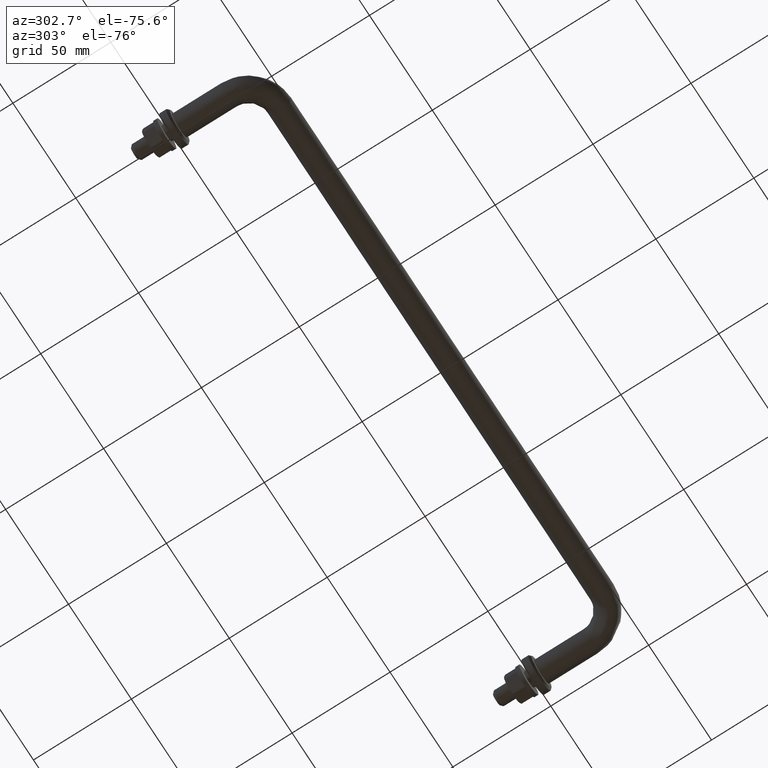
[diagram: clean part render]
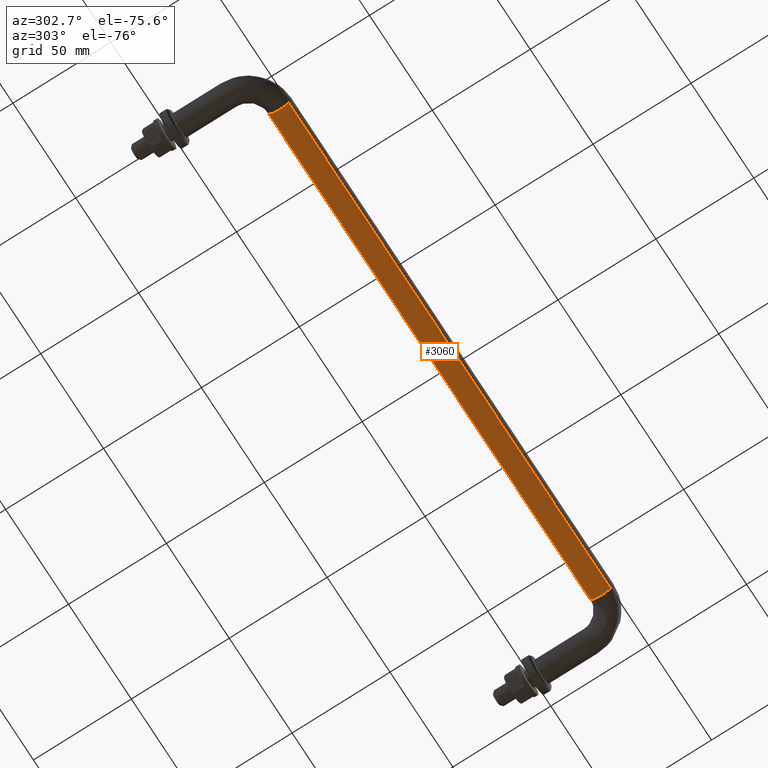
[diagram: same view with one face highlighted and labeled with its STEP entity id]
A machine part, auxiliary view. The second image highlights one B-rep face of the part: STEP entity #3060.
In plain terms, the highlighted face is a freeform B-spline surface patch.
Its self-contained STEP definition (entity closure, byte-faithful):
#2928=CARTESIAN_POINT('',(9.599999997004861,-48.467994806516181,-4.004625127142923));
#2929=CARTESIAN_POINT('',(9.599999997004861,-48.236023575800246,-4.263437430715380));
#2930=CARTESIAN_POINT('',(9.599999997004861,-47.975720289294422,-4.493734324734011));
#2931=CARTESIAN_POINT('',(9.599999997004861,-43.481985964560408,-8.469454614028436));
#2932=CARTESIAN_POINT('',(9.599999997004861,-39.506265675265993,-3.975720289294424));
#2933=CARTESIAN_POINT('',(9.599999997004861,-35.530545385971564,0.518014035439587));
#2934=CARTESIAN_POINT('',(9.599999997004861,-40.024279710705578,4.493734324734011));
#2935=CARTESIAN_POINT('',(278.560000003448520,-48.467994806516131,-4.004625127142923));
#2936=CARTESIAN_POINT('',(278.560000003448520,-48.236023575800189,-4.263437430715380));
#2937=CARTESIAN_POINT('',(278.560000003448520,-47.975720289294387,-4.493734324734011));
#2938=CARTESIAN_POINT('',(278.560000003448580,-43.481985964560380,-8.469454614028436));
#2939=CARTESIAN_POINT('',(278.560000003448520,-39.506265675265951,-3.975720289294424));
#2940=CARTESIAN_POINT('',(278.560000003448580,-35.530545385971536,0.518014035439587));
#2941=CARTESIAN_POINT('',(278.560000003448520,-40.024279710705542,4.493734324734011));
#2949=(BOUNDED_SURFACE()B_SPLINE_SURFACE(2,1,((#2928,#2935),(#2929,#2936),(#2930,#2937),(#2931,#2938),(#2932,#2939),(#2933,#2940),(#2934,#2941)),.UNSPECIFIED.,.F.,.F.,.U.)B_SPLINE_SURFACE_WITH_KNOTS((3,2,2,3),(2,2),(0.0,0.795290039756345,10.736415536710640,20.677541033664941),(0.0,268.960000006443690),.UNSPECIFIED.)GEOMETRIC_REPRESENTATION_ITEM()RATIONAL_B_SPLINE_SURFACE(((0.956886118190660,0.956886118190660),(0.976568542494924,0.976568542494924),(1.0,1.0),(0.707106781186548,0.707106781186548),(1.0,1.0),(0.707106781186548,0.707106781186548),(1.0,1.0)))REPRESENTATION_ITEM('')SURFACE());
#2950=CARTESIAN_POINT('',(271.999999999770130,-43.924603759905253,-5.999526265212910));
#2951=VERTEX_POINT('',#2950);
#2952=CARTESIAN_POINT('',(272.0,-48.467994806515627,-4.004625127143502));
#2953=VERTEX_POINT('',#2952);
#2954=CARTESIAN_POINT('',(271.999999999770180,-43.924603759905246,-5.999526265212910));
#2955=CARTESIAN_POINT('',(272.000000000000060,-43.962300391253926,-6.0));
#2956=CARTESIAN_POINT('',(272.0,-44.0,-6.0));
#2957=CARTESIAN_POINT('',(272.0,-46.679557554471145,-6.0));
#2958=CARTESIAN_POINT('',(272.000000000000060,-48.467994806515641,-4.004625127143502));
#2966=(BOUNDED_CURVE()B_SPLINE_CURVE(2,(#2954,#2955,#2956,#2957,#2958),.UNSPECIFIED.,.F.,.U.)B_SPLINE_CURVE_WITH_KNOTS((3,2,3),(0.247784295875141,0.250000000000000,0.383245959685833),.UNSPECIFIED.)CURVE()GEOMETRIC_REPRESENTATION_ITEM()RATIONAL_B_SPLINE_CURVE((0.994854295536787,0.997404141147727,1.0,0.843892647894915,0.854190687351881))REPRESENTATION_ITEM(''));
#2967=EDGE_CURVE('',#2951,#2953,#2966,.T.);
#2968=ORIENTED_EDGE('',*,*,#2967,.T.);
#2969=CARTESIAN_POINT('',(16.0,-48.467994806515662,-4.004625127143493));
#2970=VERTEX_POINT('',#2969);
#2971=CARTESIAN_POINT('',(16.0,-48.467994806515662,-4.004625127143493));
#2972=CARTESIAN_POINT('',(272.0,-48.467994806515627,-4.004625127143502));
#2973=QUASI_UNIFORM_CURVE('',1,(#2971,#2972),.UNSPECIFIED.,.F.,.U.);
#2974=EDGE_CURVE('',#2970,#2953,#2973,.T.);
#2975=ORIENTED_EDGE('',*,*,#2974,.F.);
#2976=CARTESIAN_POINT('',(15.999999997158200,-43.581600486216288,-5.985394042739838));
#2977=VERTEX_POINT('',#2976);
#2978=CARTESIAN_POINT('',(15.999999997158199,-43.581600486216288,-5.985394042739839));
#2979=CARTESIAN_POINT('',(16.000000000000004,-43.790545300404808,-6.0));
#2980=CARTESIAN_POINT('',(16.0,-44.0,-6.0));
#2981=CARTESIAN_POINT('',(15.999999999999998,-46.679557554471145,-5.999999999999999));
#2982=CARTESIAN_POINT('',(16.000000000000007,-48.467994806515669,-4.004625127143492));
#2990=(BOUNDED_CURVE()B_SPLINE_CURVE(2,(#2978,#2979,#2980,#2981,#2982),.UNSPECIFIED.,.F.,.U.)B_SPLINE_CURVE_WITH_KNOTS((3,2,3),(0.237833686286240,0.250000000000000,0.383245959685833),.UNSPECIFIED.)CURVE()GEOMETRIC_REPRESENTATION_ITEM()RATIONAL_B_SPLINE_CURVE((0.972879875860633,0.985746276861130,1.0,0.843892647894915,0.854190687351881))REPRESENTATION_ITEM(''));
#2991=EDGE_CURVE('',#2977,#2970,#2990,.T.);
#2992=ORIENTED_EDGE('',*,*,#2991,.F.);
#2993=CARTESIAN_POINT('',(16.0,-38.0,0.0));
#2994=VERTEX_POINT('',#2993);
#2995=CARTESIAN_POINT('',(16.0,-38.0,0.0));
#2996=CARTESIAN_POINT('',(15.999999999999995,-38.000000000000014,-5.595221075482508));
#2997=CARTESIAN_POINT('',(15.999999997158195,-43.581600486216288,-5.985394042739838));
#3005=(BOUNDED_CURVE()B_SPLINE_CURVE(2,(#2995,#2996,#2997),.UNSPECIFIED.,.F.,.U.)B_SPLINE_CURVE_WITH_KNOTS((3,3),(0.0,0.237833686286240),.UNSPECIFIED.)CURVE()GEOMETRIC_REPRESENTATION_ITEM()RATIONAL_B_SPLINE_CURVE((1.0,0.721360504325417,0.972879875860633))REPRESENTATION_ITEM(''));
#3006=EDGE_CURVE('',#2994,#2977,#3005,.T.);
#3007=ORIENTED_EDGE('',*,*,#3006,.F.);
#3008=CARTESIAN_POINT('',(16.0,-40.024279710704747,4.493734324733278));
#3009=VERTEX_POINT('',#3008);
#3010=CARTESIAN_POINT('',(16.0,-40.024279710704754,4.493734324733278));
#3011=CARTESIAN_POINT('',(16.000000000000004,-37.999999999999993,2.702802922143462));
#3012=CARTESIAN_POINT('',(16.0,-38.0,0.0));
#3020=(BOUNDED_CURVE()B_SPLINE_CURVE(2,(#3010,#3011,#3012),.UNSPECIFIED.,.F.,.U.)B_SPLINE_CURVE_WITH_KNOTS((3,3),(0.865779888059627,1.0),.UNSPECIFIED.)CURVE()GEOMETRIC_REPRESENTATION_ITEM()RATIONAL_B_SPLINE_CURVE((0.854350158224964,0.842751357537129,1.0))REPRESENTATION_ITEM(''));
#3021=EDGE_CURVE('',#3009,#2994,#3020,.T.);
#3022=ORIENTED_EDGE('',*,*,#3021,.F.);
#3023=CARTESIAN_POINT('',(272.0,-40.024279710704718,4.493734324733270));
#3024=VERTEX_POINT('',#3023);
#3025=CARTESIAN_POINT('',(16.0,-40.024279710704747,4.493734324733278));
#3026=CARTESIAN_POINT('',(272.0,-40.024279710704718,4.493734324733270));
#3027=QUASI_UNIFORM_CURVE('',1,(#3025,#3026),.UNSPECIFIED.,.F.,.U.);
#3028=EDGE_CURVE('',#3009,#3024,#3027,.T.);
#3029=ORIENTED_EDGE('',*,*,#3028,.T.);
#3030=CARTESIAN_POINT('',(272.0,-38.0,0.0));
#3031=VERTEX_POINT('',#3030);
#3032=CARTESIAN_POINT('',(271.999999999999940,-40.024279710704732,4.493734324733270));
#3033=CARTESIAN_POINT('',(272.0,-37.999999999999986,2.702802922143446));
#3034=CARTESIAN_POINT('',(272.0,-38.0,0.0));
#3042=(BOUNDED_CURVE()B_SPLINE_CURVE(2,(#3032,#3033,#3034),.UNSPECIFIED.,.F.,.U.)B_SPLINE_CURVE_WITH_KNOTS((3,3),(0.865779888059628,1.0),.UNSPECIFIED.)CURVE()GEOMETRIC_REPRESENTATION_ITEM()RATIONAL_B_SPLINE_CURVE((0.854350158224964,0.842751357537130,1.0))REPRESENTATION_ITEM(''));
#3043=EDGE_CURVE('',#3024,#3031,#3042,.T.);
#3044=ORIENTED_EDGE('',*,*,#3043,.T.);
#3045=CARTESIAN_POINT('',(272.0,-38.0,0.0));
#3046=CARTESIAN_POINT('',(272.000000000000110,-38.000000000000007,-5.925071577874211));
#3047=CARTESIAN_POINT('',(271.999999999770130,-43.924603759905239,-5.999526265212910));
#3055=(BOUNDED_CURVE()B_SPLINE_CURVE(2,(#3045,#3046,#3047),.UNSPECIFIED.,.F.,.U.)B_SPLINE_CURVE_WITH_KNOTS((3,3),(0.0,0.247784295875141),.UNSPECIFIED.)CURVE()GEOMETRIC_REPRESENTATION_ITEM()RATIONAL_B_SPLINE_CURVE((1.0,0.709702640038820,0.994854295536787))REPRESENTATION_ITEM(''));
#3056=EDGE_CURVE('',#3031,#2951,#3055,.T.);
#3057=ORIENTED_EDGE('',*,*,#3056,.T.);
#3058=EDGE_LOOP('',(#2968,#2975,#2992,#3007,#3022,#3029,#3044,#3057));
#3059=FACE_OUTER_BOUND('',#3058,.T.);
#3060=ADVANCED_FACE('',(#3059),#2949,.T.);